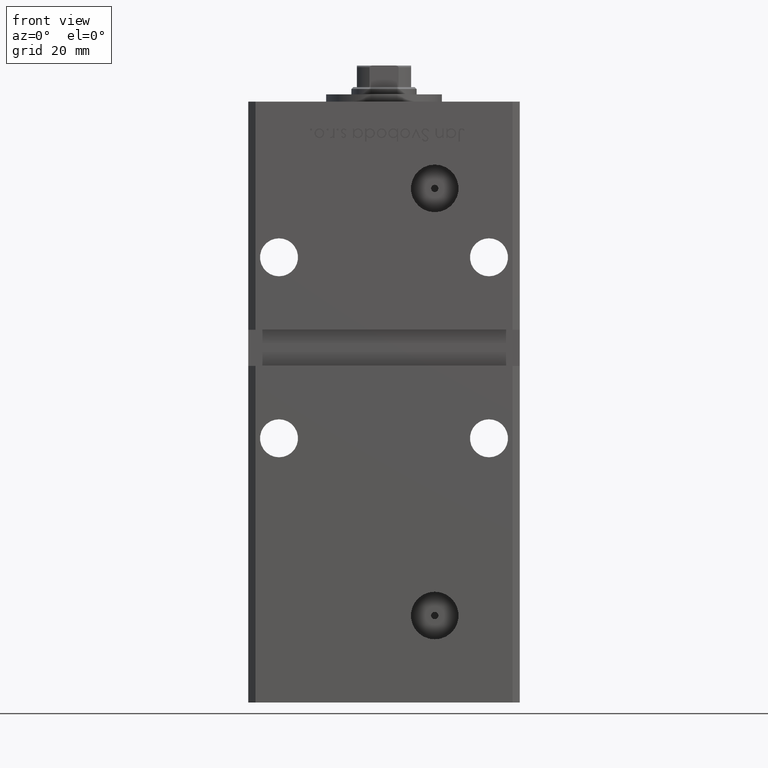
[diagram: clean part render]
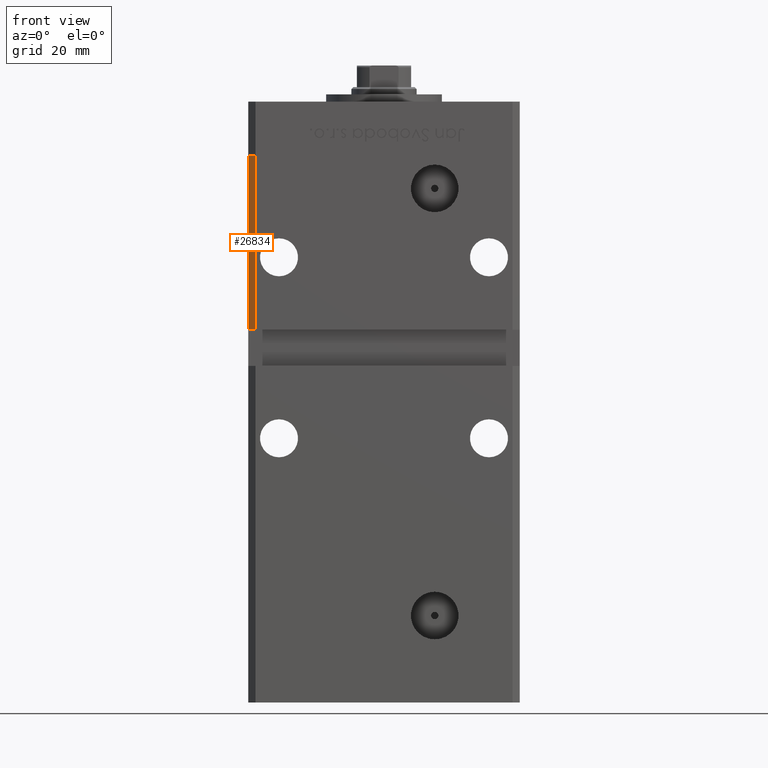
[diagram: same view with one face highlighted and labeled with its STEP entity id]
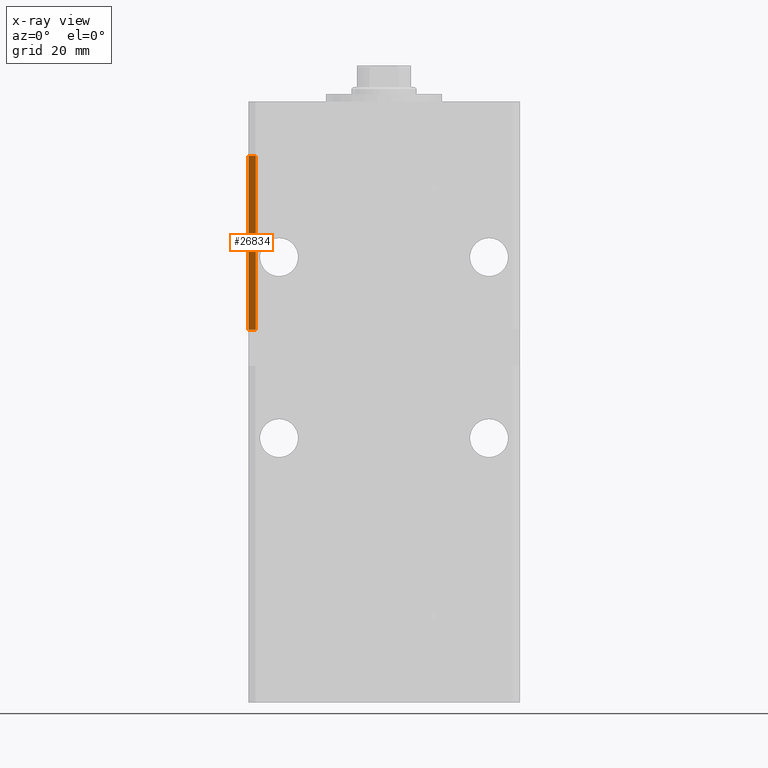
[diagram: x-ray of the same camera — body ghosted, the highlighted face saturated]
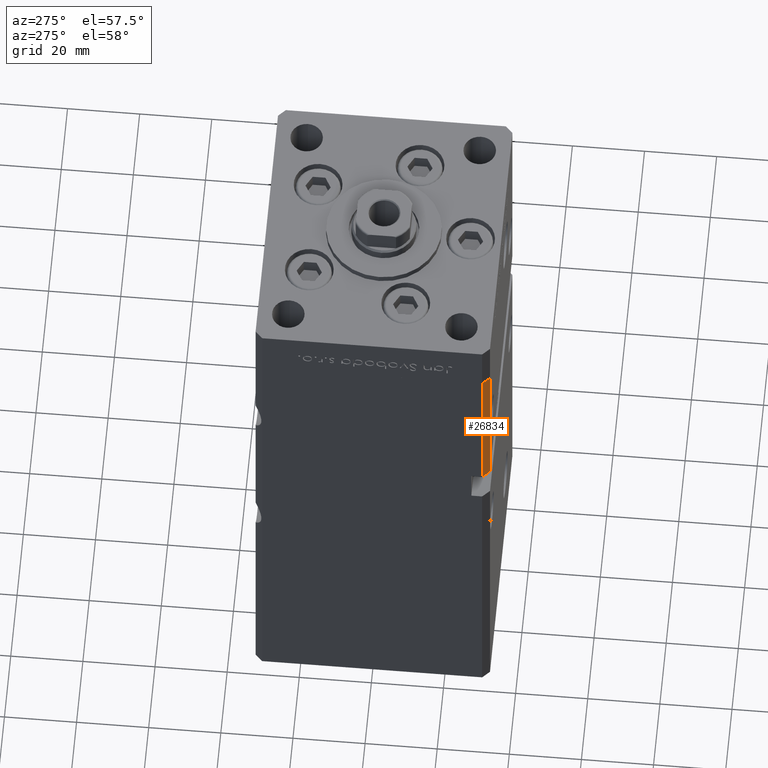
[diagram: same view with one face highlighted and labeled with its STEP entity id]
A machine part, front view. The second image highlights one B-rep face of the part: STEP entity #26834.
The next image is the same camera in x-ray: the body ghosted, the highlighted face saturated — about 0% of this face is hidden behind the body in this view.
A second angle (auxiliary view) of the same face is appended — the face is thin or edge-on in the first view.
In plain terms, the highlighted planar face has unit normal (0.7071, 0.7071, 0).
Its self-contained STEP definition (entity closure, byte-faithful):
#388 = ORIENTED_EDGE ( 'NONE', *, *, #14215, .F. ) ;
#703 = EDGE_CURVE ( 'NONE', #31736, #36699, #30277, .T. ) ;
#712 = VERTEX_POINT ( 'NONE', #26255 ) ;
#6874 = CARTESIAN_POINT ( 'NONE',  ( -37.49999999999999289, -30.50000000000000000, 136.0000000000000000 ) ) ;
#7559 = EDGE_LOOP ( 'NONE', ( #12383, #8558, #388, #15572 ) ) ;
#8558 = ORIENTED_EDGE ( 'NONE', *, *, #703, .T. ) ;
#12383 = ORIENTED_EDGE ( 'NONE', *, *, #45749, .T. ) ;
#12838 = VECTOR ( 'NONE', #42456, 1000.000000000000114 ) ;
#14215 = EDGE_CURVE ( 'NONE', #712, #36699, #31501, .T. ) ;
#15572 = ORIENTED_EDGE ( 'NONE', *, *, #16675, .F. ) ;
#16675 = EDGE_CURVE ( 'NONE', #24232, #712, #21779, .T. ) ;
#18075 = DIRECTION ( 'NONE',  ( -0.000000000000000000, -0.000000000000000000, -1.000000000000000000 ) ) ;
#20408 = PLANE ( 'NONE',  #26013 ) ;
#21779 = LINE ( 'NONE', #41938, #12838 ) ;
#22106 = LINE ( 'NONE', #38497, #42155 ) ;
#24232 = VERTEX_POINT ( 'NONE', #6874 ) ;
#25221 = CARTESIAN_POINT ( 'NONE',  ( -37.49999999999999289, -30.50000000000000000, 136.0000000000000000 ) ) ;
#25761 = VECTOR ( 'NONE', #40100, 1000.000000000000000 ) ;
#26013 = AXIS2_PLACEMENT_3D ( 'NONE', #25221, #37581, #52942 ) ;
#26255 = CARTESIAN_POINT ( 'NONE',  ( -35.49999999999999289, -32.50000000000000000, 136.0000000000000000 ) ) ;
#26834 = ADVANCED_FACE ( 'NONE', ( #49152 ), #20408, .F. ) ;
#29769 = DIRECTION ( 'NONE',  ( 0.7071067811865474617, -0.7071067811865474617, 0.000000000000000000 ) ) ;
#30277 = LINE ( 'NONE', #42387, #52865 ) ;
#30996 = CARTESIAN_POINT ( 'NONE',  ( -37.49999999999999289, -30.50000000000000000, 88.00000000000002842 ) ) ;
#31501 = LINE ( 'NONE', #31761, #25761 ) ;
#31736 = VERTEX_POINT ( 'NONE', #30996 ) ;
#31761 = CARTESIAN_POINT ( 'NONE',  ( -35.49999999999999289, -32.50000000000000000, 136.0000000000000000 ) ) ;
#36699 = VERTEX_POINT ( 'NONE', #40722 ) ;
#37581 = DIRECTION ( 'NONE',  ( 0.7071067811865475727, 0.7071067811865475727, -0.000000000000000000 ) ) ;
#38497 = CARTESIAN_POINT ( 'NONE',  ( -37.49999999999999289, -30.50000000000000000, 136.0000000000000000 ) ) ;
#40100 = DIRECTION ( 'NONE',  ( -0.000000000000000000, -0.000000000000000000, -1.000000000000000000 ) ) ;
#40722 = CARTESIAN_POINT ( 'NONE',  ( -35.49999999999999289, -32.50000000000000000, 88.00000000000002842 ) ) ;
#41938 = CARTESIAN_POINT ( 'NONE',  ( -37.49999999999999289, -30.50000000000000000, 136.0000000000000000 ) ) ;
#42155 = VECTOR ( 'NONE', #18075, 1000.000000000000000 ) ;
#42387 = CARTESIAN_POINT ( 'NONE',  ( -37.49999999999999289, -30.50000000000000000, 88.00000000000002842 ) ) ;
#42456 = DIRECTION ( 'NONE',  ( 0.7071067811865474617, -0.7071067811865474617, 0.000000000000000000 ) ) ;
#45749 = EDGE_CURVE ( 'NONE', #24232, #31736, #22106, .T. ) ;
#49152 = FACE_OUTER_BOUND ( 'NONE', #7559, .T. ) ;
#52865 = VECTOR ( 'NONE', #29769, 1000.000000000000114 ) ;
#52942 = DIRECTION ( 'NONE',  ( -0.7071067811865474617, 0.7071067811865474617, 0.000000000000000000 ) ) ;